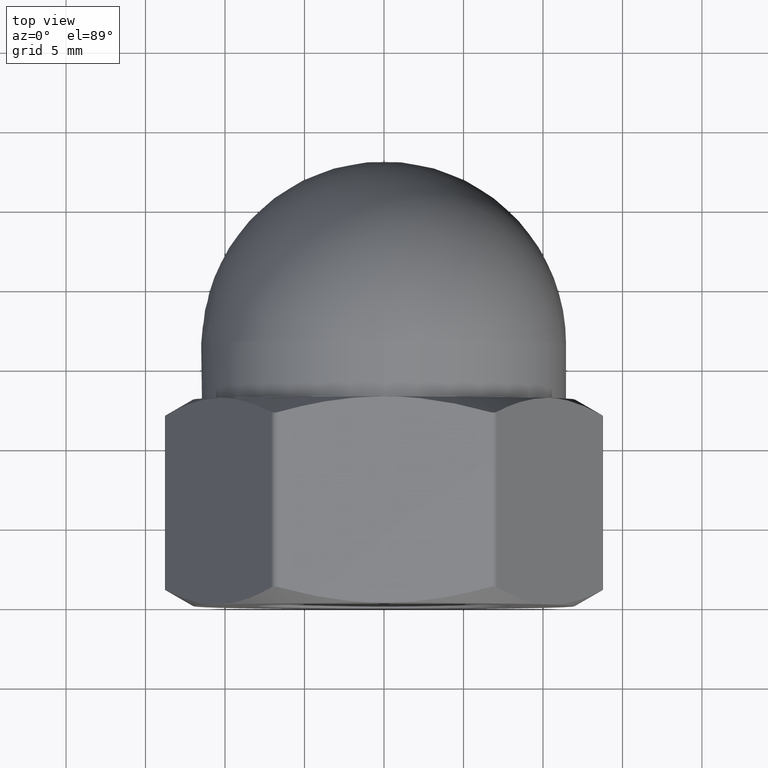
[diagram: clean part render]
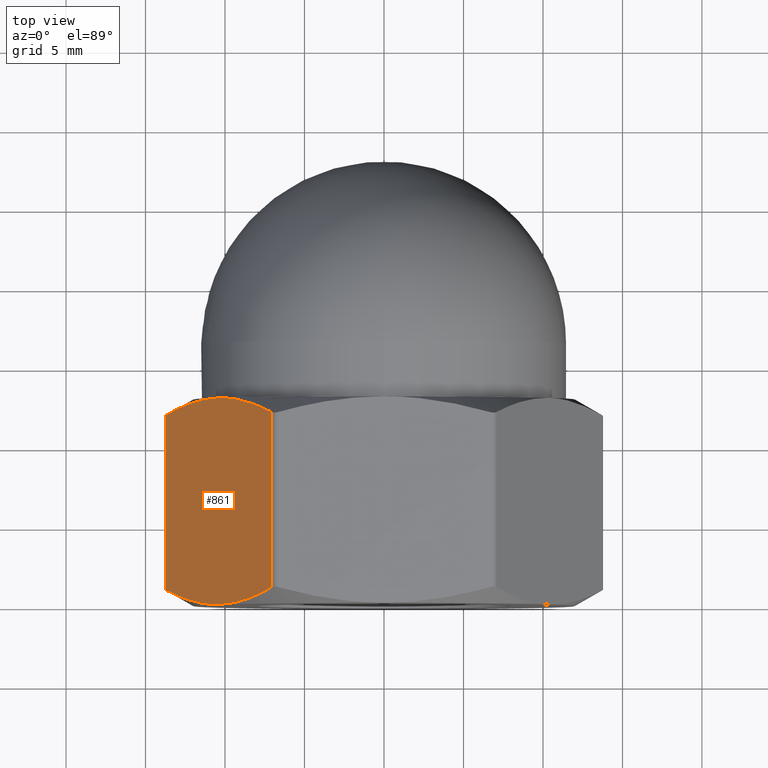
[diagram: same view with one face highlighted and labeled with its STEP entity id]
A machine part, top view. The second image highlights one B-rep face of the part: STEP entity #861.
In plain terms, the highlighted planar face has unit normal (0.866, 0, -0.5).
Its self-contained STEP definition (entity closure, byte-faithful):
#5 = VECTOR ( 'NONE', #249, 1000.000000000000000 ) ;
#17 = CARTESIAN_POINT ( 'NONE',  ( -10.39230484541326600, 13.00000000000000000, 6.000000000000002700 ) ) ;
#50 = VERTEX_POINT ( 'NONE', #833 ) ;
#72 = DIRECTION ( 'NONE',  ( 0.8660254037844387100, 0.0000000000000000000, -0.5000000000000000000 ) ) ;
#102 = ORIENTED_EDGE ( 'NONE', *, *, #687, .F. ) ;
#123 = EDGE_CURVE ( 'NONE', #50, #1025, #1008, .T. ) ;
#142 = EDGE_CURVE ( 'NONE', #1058, #1175, #1260, .T. ) ;
#165 = CARTESIAN_POINT ( 'NONE',  ( -9.268373994161450500, 12.88676039513641500, 7.946705338562270300 ) ) ;
#176 = B_SPLINE_CURVE_WITH_KNOTS ( 'NONE', 3,
 ( #1091, #469, #1192, #1082, #347, #17 ),
 .UNSPECIFIED., .F., .F.,
 ( 4, 2, 4 ),
 ( 0.0002976420579480871700, 0.003654043546377621100, 0.007010445034807155100 ),
 .UNSPECIFIED. ) ;
#249 = DIRECTION ( 'NONE',  ( -0.0000000000000000000, 1.000000000000000000, -0.0000000000000000000 ) ) ;
#263 = ORIENTED_EDGE ( 'NONE', *, *, #123, .T. ) ;
#266 = CARTESIAN_POINT ( 'NONE',  ( -7.072540797572914400, 12.01022088346238800, 11.74999999999999800 ) ) ;
#277 = EDGE_LOOP ( 'NONE', ( #398, #412, #631, #780, #263, #102 ) ) ;
#278 = CARTESIAN_POINT ( 'NONE',  ( -10.67378928446765100, -1.020568822323025100E-014, 5.512454650017772000 ) ) ;
#326 = VERTEX_POINT ( 'NONE', #808 ) ;
#347 = CARTESIAN_POINT ( 'NONE',  ( -10.95744704231413100, 13.00000000000001100, 5.021145001466600800 ) ) ;
#374 = CARTESIAN_POINT ( 'NONE',  ( -7.614553384551764600, 12.31321960559746000, 10.81120666101079300 ) ) ;
#398 = ORIENTED_EDGE ( 'NONE', *, *, #779, .F. ) ;
#405 = CARTESIAN_POINT ( 'NONE',  ( -9.268740651451430800, 0.09356582542160302200, 7.946070269507060000 ) ) ;
#410 = VERTEX_POINT ( 'NONE', #1327 ) ;
#412 = ORIENTED_EDGE ( 'NONE', *, *, #1199, .T. ) ;
#469 = CARTESIAN_POINT ( 'NONE',  ( -13.16874182127977700, 12.31395443590087200, 1.191070093786308100 ) ) ;
#483 = CARTESIAN_POINT ( 'NONE',  ( -13.71206889325361200, 0.9897791165376113000, 0.2499999999999954500 ) ) ;
#485 = EDGE_CURVE ( 'NONE', #50, #1058, #176, .T. ) ;
#497 = VECTOR ( 'NONE', #787, 1000.000000000000000 ) ;
#499 = CARTESIAN_POINT ( 'NONE',  ( -13.17005630627476400, 0.6867803944025452400, 1.188793338989204900 ) ) ;
#507 = CARTESIAN_POINT ( 'NONE',  ( -13.85640646055101900, 13.00000000000000000, -5.068912574756923600E-015 ) ) ;
#565 = CARTESIAN_POINT ( 'NONE',  ( -7.072540797572914400, 12.01022088346238800, 11.74999999999999800 ) ) ;
#591 = CARTESIAN_POINT ( 'NONE',  ( -11.79426250169669100, 0.1799719799072206400, 3.571738109256914500 ) ) ;
#631 = ORIENTED_EDGE ( 'NONE', *, *, #142, .F. ) ;
#641 = LINE ( 'NONE', #1071, #5 ) ;
#687 = EDGE_CURVE ( 'NONE', #410, #1025, #1236, .T. ) ;
#706 = CARTESIAN_POINT ( 'NONE',  ( -9.827162648512391700, -9.822194056360866700E-015, 6.978854998533401000 ) ) ;
#710 = FACE_OUTER_BOUND ( 'NONE', #277, .T. ) ;
#779 = EDGE_CURVE ( 'NONE', #326, #410, #1134, .T. ) ;
#780 = ORIENTED_EDGE ( 'NONE', *, *, #485, .F. ) ;
#787 = DIRECTION ( 'NONE',  ( 0.0000000000000000000, -1.000000000000000000, 0.0000000000000000000 ) ) ;
#791 = CARTESIAN_POINT ( 'NONE',  ( -13.71206889325361200, 13.00000000000000000, 0.2499999999999947500 ) ) ;
#808 = CARTESIAN_POINT ( 'NONE',  ( -7.072540797572901100, 0.9897791165376173000, 11.75000000000002100 ) ) ;
#833 = CARTESIAN_POINT ( 'NONE',  ( -13.71206889325362400, 12.01022088346238100, 0.2499999999999739400 ) ) ;
#861 = ADVANCED_FACE ( 'NONE', ( #710 ), #1332, .F. ) ;
#895 = CARTESIAN_POINT ( 'NONE',  ( -12.62355850601879600, 0.4379369868610709100, 2.135355295257161900 ) ) ;
#910 = AXIS2_PLACEMENT_3D ( 'NONE', #507, #72, #1130 ) ;
#924 = CARTESIAN_POINT ( 'NONE',  ( -7.615867869546747200, 0.6860455640991252000, 10.80892990621369200 ) ) ;
#992 = CARTESIAN_POINT ( 'NONE',  ( -8.990347189129831700, 12.82002802009277800, 8.428261890743083700 ) ) ;
#1008 = LINE ( 'NONE', #791, #497 ) ;
#1019 = CARTESIAN_POINT ( 'NONE',  ( -7.072540797572901100, 0.9897791165376173000, 11.75000000000002100 ) ) ;
#1025 = VERTEX_POINT ( 'NONE', #1369 ) ;
#1058 = VERTEX_POINT ( 'NONE', #1155 ) ;
#1071 = CARTESIAN_POINT ( 'NONE',  ( -7.072540797572912700, 13.00000000000000000, 11.75000000000000200 ) ) ;
#1082 = CARTESIAN_POINT ( 'NONE',  ( -11.51586903937509000, 12.90643417457839700, 4.053929730492940900 ) ) ;
#1091 = CARTESIAN_POINT ( 'NONE',  ( -13.71206889325362400, 12.01022088346238100, 0.2499999999999739400 ) ) ;
#1110 = CARTESIAN_POINT ( 'NONE',  ( -9.828025114344679700, 12.97678812667749600, 6.977361163892085800 ) ) ;
#1113 = CARTESIAN_POINT ( 'NONE',  ( -10.39230484541326600, 0.0000000000000000000, 6.000000000000002700 ) ) ;
#1130 = DIRECTION ( 'NONE',  ( -0.4999999999999999400, 0.0000000000000000000, -0.8660254037844386000 ) ) ;
#1134 = B_SPLINE_CURVE_WITH_KNOTS ( 'NONE', 3,
 ( #1019, #924, #1349, #405, #706, #1344 ),
 .UNSPECIFIED., .F., .F.,
 ( 4, 2, 4 ),
 ( 0.0002976420579480877700, 0.003654043546377617200, 0.007010445034807147300 ),
 .UNSPECIFIED. ) ;
#1155 = CARTESIAN_POINT ( 'NONE',  ( -10.39230484541326600, 13.00000000000000000, 6.000000000000002700 ) ) ;
#1175 = VERTEX_POINT ( 'NONE', #565 ) ;
#1192 = CARTESIAN_POINT ( 'NONE',  ( -12.62147978884728300, 12.56290125102713200, 2.138955739012796500 ) ) ;
#1199 = EDGE_CURVE ( 'NONE', #326, #1175, #641, .T. ) ;
#1209 = CARTESIAN_POINT ( 'NONE',  ( -10.95658457648184300, 0.02321187332250321600, 5.022638836107915100 ) ) ;
#1211 = CARTESIAN_POINT ( 'NONE',  ( -10.39230484541326600, 13.00000000000000000, 6.000000000000002700 ) ) ;
#1215 = CARTESIAN_POINT ( 'NONE',  ( -10.11082040635887000, 13.00000000000001100, 6.487545349982230600 ) ) ;
#1236 = B_SPLINE_CURVE_WITH_KNOTS ( 'NONE', 3,
 ( #1113, #278, #1209, #1315, #591, #895, #499, #483 ),
 .UNSPECIFIED., .F., .F.,
 ( 4, 2, 2, 4 ),
 ( 0.007010445034807147300, 0.008682192066603524800, 0.01035393909839990400, 0.01369743316199265700 ),
 .UNSPECIFIED. ) ;
#1260 = B_SPLINE_CURVE_WITH_KNOTS ( 'NONE', 3,
 ( #1211, #1215, #1110, #165, #992, #1322, #374, #266 ),
 .UNSPECIFIED., .F., .F.,
 ( 4, 2, 2, 4 ),
 ( 0.007010445034807155100, 0.008682192066603530000, 0.01035393909839990600, 0.01369743316199265600 ),
 .UNSPECIFIED. ) ;
#1315 = CARTESIAN_POINT ( 'NONE',  ( -11.51623569666507200, 0.1132396048635791000, 4.053294661437724300 ) ) ;
#1322 = CARTESIAN_POINT ( 'NONE',  ( -8.161051184807721600, 12.56206301313892800, 9.864644704742834900 ) ) ;
#1327 = CARTESIAN_POINT ( 'NONE',  ( -10.39230484541326600, 0.0000000000000000000, 6.000000000000002700 ) ) ;
#1332 = PLANE ( 'NONE',  #910 ) ;
#1344 = CARTESIAN_POINT ( 'NONE',  ( -10.39230484541326600, 0.0000000000000000000, 6.000000000000002700 ) ) ;
#1349 = CARTESIAN_POINT ( 'NONE',  ( -8.163129901979241200, 0.4370987489728692700, 9.861044260987201300 ) ) ;
#1369 = CARTESIAN_POINT ( 'NONE',  ( -13.71206889325361200, 0.9897791165376113000, 0.2499999999999954500 ) ) ;